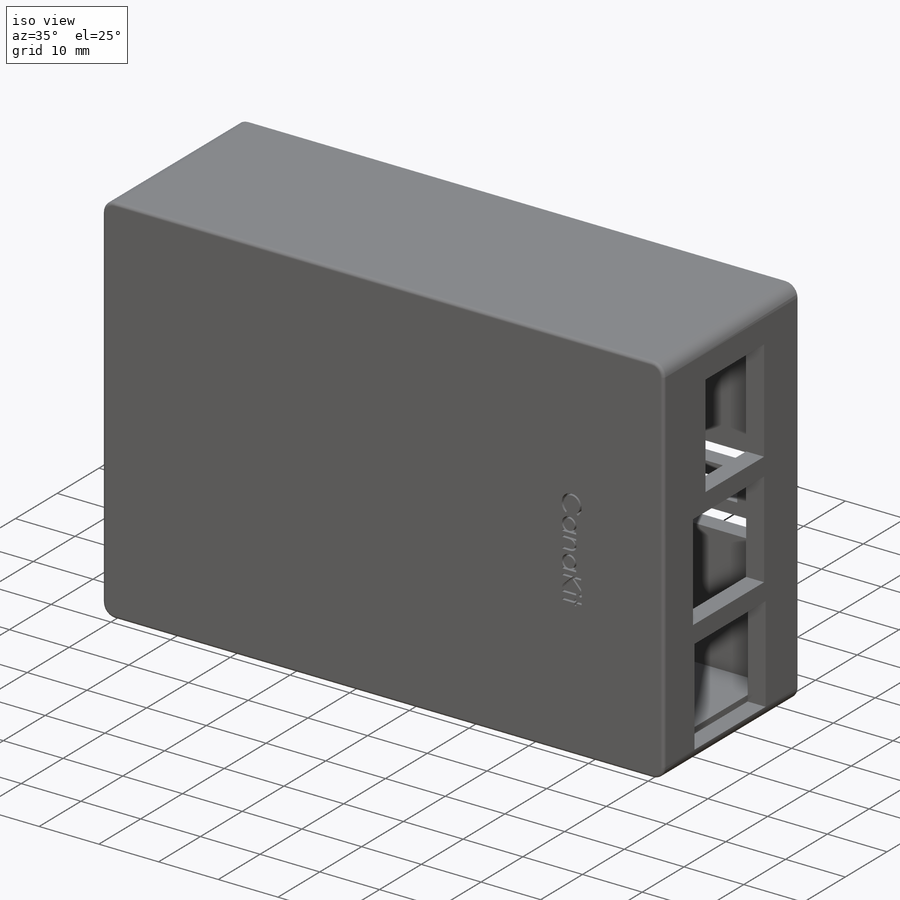
[diagram: iso view]
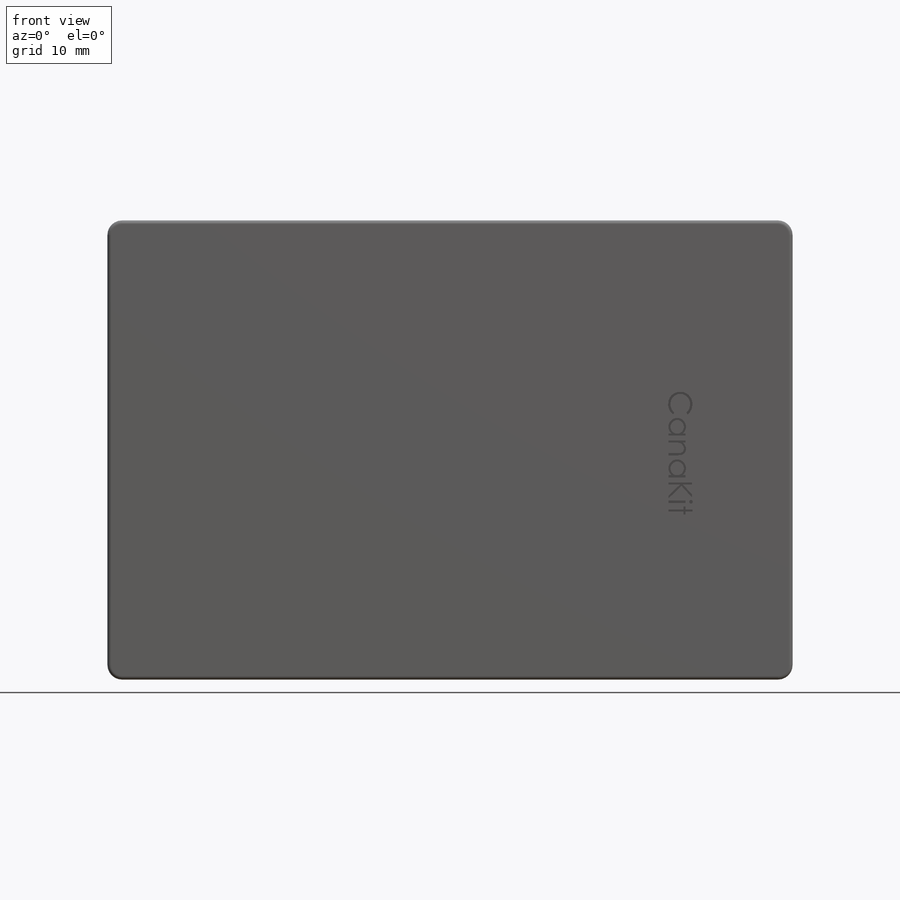
[diagram: front view]
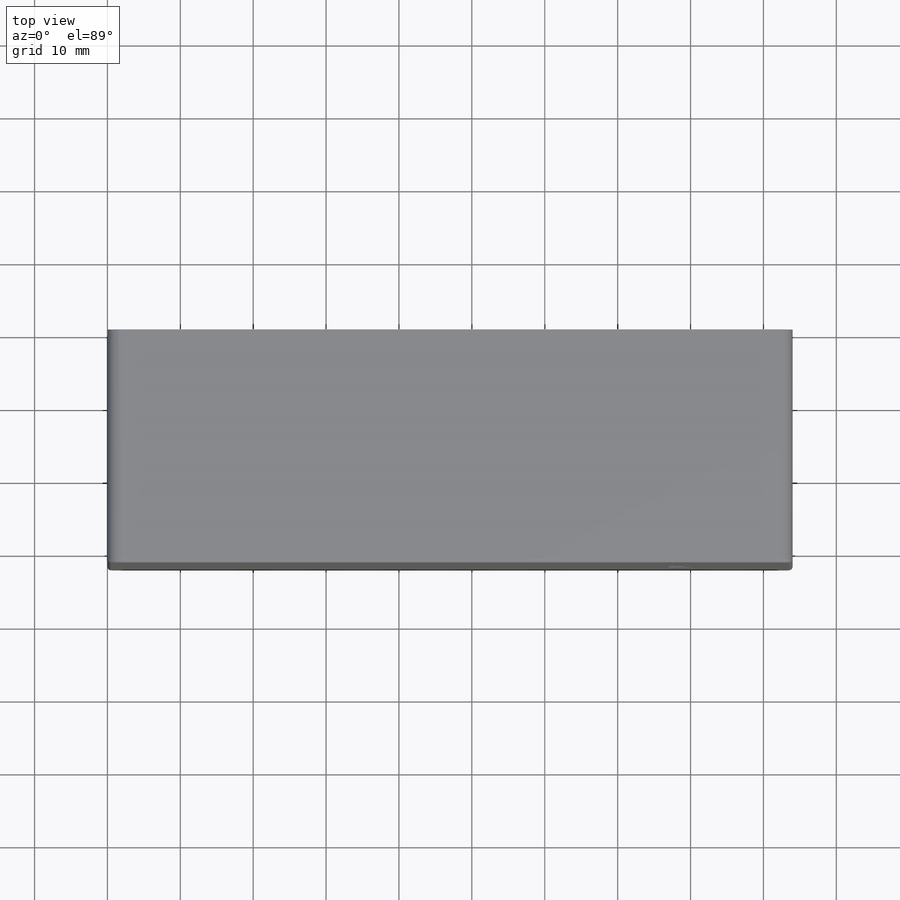
[diagram: top view]
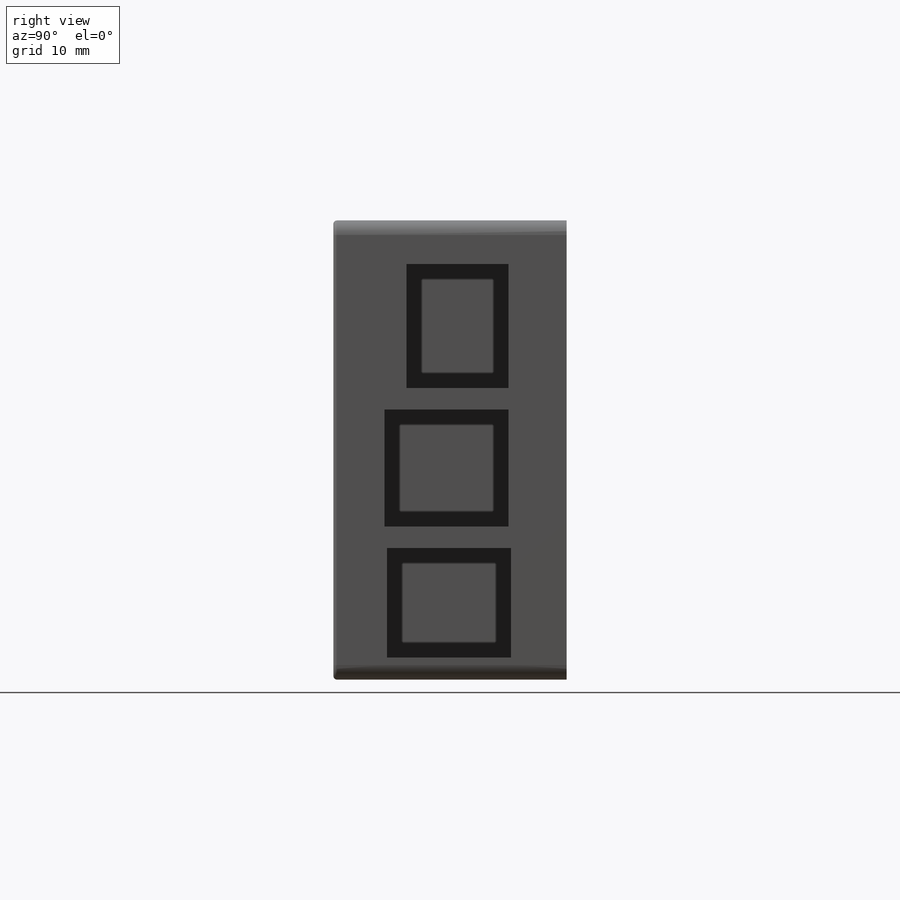
[diagram: right view]
SOLIDWORKS PART (.sldprt)
format: sldprt  version: not decoded by parser v0  size: 872,448 bytes
history: native  units: mm
features: sketch x10, cut_extrude x9, fillet x2, material x1, extrude x1, shell x1 (+11 scaffold rows collapsed)
feature tree (35):
  scaffold x11  (default folders/planes/origin — collapsed)
  material  "Material <not specified>"
  sketch  "Sketch1"  dims[D1=94.0mm D2=63.0mm D3=50.0mm D4=3.0mm D5=24.0mm D6=11.0mm D7=50.0mm D8=3.0mm D9=21.0mm D10=16.0mm D11=60.0mm D12=3.0mm D13=19.0mm D14=21.0mm D15=76.0mm D16=3.0mm D17=5.0mm D18=26.0mm D19=76.0mm D20=3.0mm D21=8.0mm D22=31.0mm D23=76.0mm D24=3.0mm D25=5.0mm D26=36.0mm D27=60.0mm D28=3.0mm D29=19.0mm D30=41.0mm D31=50.0mm D32=3.0mm D33=21.0mm D34=46.0mm D35=50.0mm D36=3.0mm D37=24.0mm D38=51.0mm]
  extrude  "Boss-Extrude1"  Depth=32mm
  shell  "Shell1"  Thickness=3mm
  sketch  "Sketch2"  dims[c1.D1=17.0mm c1.D2=8.0mm c1.D3=0.0mm c1.D4=63.0mm c2.D4=90.0deg c3.D4=63.0mm c4.D4=270.0deg c5.D4=23.0mm c5.D5=23.0mm]
  cut_extrude  "Cut-Extrude1"  Depth=3mm
  sketch  "Sketch3"  dims[D1=17.0mm D2=14.0mm D3=6.0mm D4=8.0mm]
  cut_extrude  "Cut-Extrude2"  Depth=3mm
  sketch  "Sketch4"  dims[D1=16.0mm D2=17.0mm D3=3.0mm D4=8.0mm]
  cut_extrude  "Cut-Extrude4"  Depth=3mm
  sketch  "Sketch5"  dims[D1=17.0mm D2=16.0mm D3=3.0mm D4=63.0mm]
  cut_extrude  "Cut-Extrude5"  Depth=3mm
  sketch  "Sketch6"  dims[D1=3.5mm D2=35.0mm D3=11.0mm]
  cut_extrude  "Cut-Extrude6"  Depth=3mm
  sketch  "Sketch7"  dims[D1=9.0mm D2=3.0mm D3=8.0mm D4=7.0mm D5=9.0mm D6=3.0mm D7=8.0mm D8=6.0mm D9=8.0mm D10=2.5mm D11=6.0mm D12=8.0mm D13=4.0mm]
  cut_extrude  "Cut-Extrude7"  Depth=3mm
  sketch  "Sketch9"  dims[D1=17.0mm D2=~58.863617mm]
  cut_extrude  "Cut-Extrude8"  Depth=1mm
  sketch  "Sketch11"  dims[D1=1.5mm]
  cut_extrude  "Cut-Extrude9"  Depth=1mm
  sketch  "Sketch14"  dims[D1=50.0mm D2=3.0mm D3=11.0mm D4=24.0mm D5=50.0mm D6=3.0mm D7=21.0mm D8=16.0mm D9=60.0mm D10=3.0mm D11=19.0mm D12=21.0mm D13=76.0mm D14=3.0mm D15=5.0mm D16=26.0mm D17=76.0mm D18=3.0mm D19=8.0mm D20=31.0mm D21=76.0mm D22=3.0mm D23=5.0mm D24=36.0mm D25=60.0mm D26=3.0mm D27=19.0mm D28=41.0mm D29=50.0mm D30=3.0mm D31=21.0mm D32=46.0mm D33=50.0mm D34=3.0mm D35=24.0mm D36=51.0mm]
  cut_extrude  "Cut-Extrude11"  Depth=10mm
  fillet  "Fillet1"  Radius=2mm
  fillet  "Fillet2"  Radius=0.5mm
decode coverage: 23 of 23 modeling features carry decoded parameters
note: ~ marks probable driven/reference dimensions
note: suppression state not decoded; provenance and decode notes live in map.json
